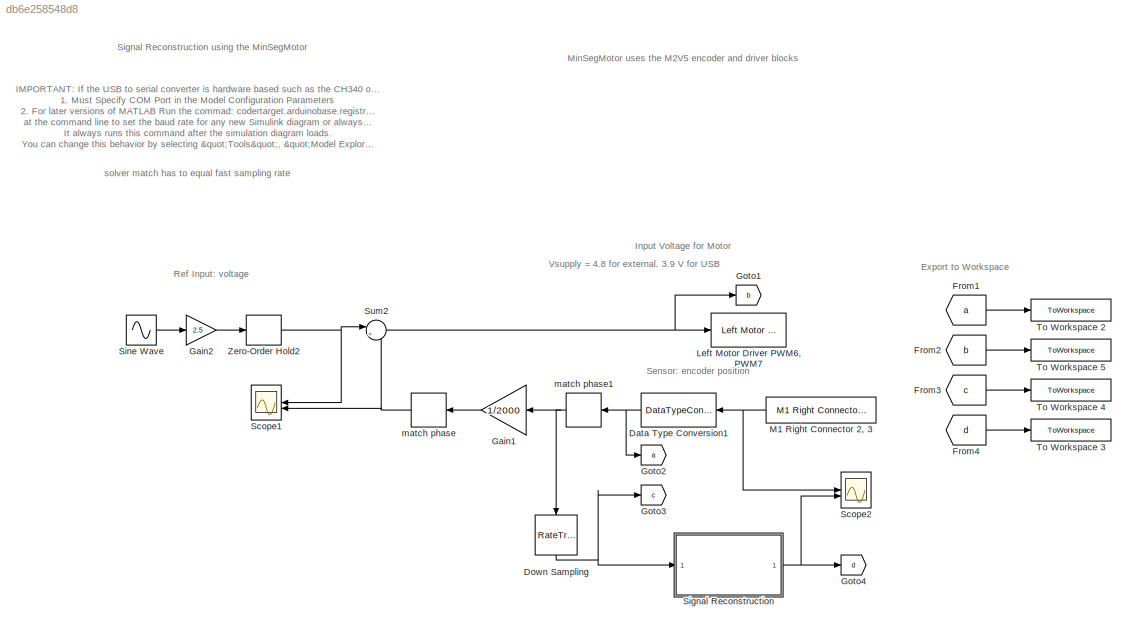
MODEL slx_db6e258548d8
KIND model
CONFIG AbsTol = auto
CONFIG EnableMultiTasking = on
CONFIG FixedStep = auto
CONFIG MaxStep = auto
CONFIG MinStep = auto
CONFIG PostLoadFcn = try, \ncodertarget.arduinobase.registry.setBaudRate(gcs,115200)\ndisp('baud rate set to 115200 for external mode hardware serial')\nbaudrate='set_to_115200'\ncatch\ndisp('baud rate setting not needed in this version')\nend
CONFIG RelTol = 1e-3
CONFIG SampleTimeConstraint = Unconstrained
CONFIG SolverName = ode45
CONFIG StartTime = 0.0
CONFIG StopTime = 10.0
BLOCK [DataTypeConversion] Data Type Conversion1
  NameLocation = top
  OutDataTypeStr = double
  RndMeth = Floor
  SaturateOnIntegerOverflow = off
BLOCK [RateTransition] Down Sampling
  NameLocation = left
  OutPortSampleTime = T_ss
BLOCK [From] From1
  GotoTag = a
BLOCK [From] From2
  GotoTag = b
BLOCK [From] From3
  GotoTag = c
BLOCK [From] From4
  GotoTag = d
BLOCK [Gain] Gain1
  Gain = 1/2000
  NameLocation = top
BLOCK [Gain] Gain2
  Gain = 2.5
BLOCK [Goto] Goto1
  GotoTag = b
BLOCK [Goto] Goto2
  GotoTag = a
BLOCK [Goto] Goto3
  GotoTag = c
BLOCK [Goto] Goto4
  GotoTag = d
BLOCK [Reference] Left Motor Driver PWM6, PWM7  REF=MinSegLibrary_M2V5/Left Motor Driver
PWM6, PWM7
  SourceBlock = MinSegLibrary_M2V5/Left Motor Driver\nPWM6, PWM7
  SourceProductName = M2V5 Library
BLOCK [Reference] M1 Right Connector 2, 3  REF=MinSegLibrary_M2V5/M1 Right Connector 2, 3
  NameLocation = top
  SourceBlock = MinSegLibrary_M2V5/M1 Right Connector 2, 3
  SourceProductName = M2V5 Library
  SourceType = Encoder_arduino
BLOCK [Scope] Scope1
  Floating = off
  NameLocation = top
  NumInputPorts = 2
  ScopeSpecificationString = Simulink.scopes.TimeScopeBlockCfg('CurrentConfiguration', extmgr.ConfigurationSet(extmgr.Configuration('Core','General UI',true),extmgr.Configuration('Core','Source UI',true),extmgr.Configuration('Sources','WiredSimulink',true,'DataLoggingVariableName','ScopeData1'),extmgr.Configuration('Visuals','Time Domain',true,'SerializedDisplays',{struct('MinYLimReal','-5.19991','MaxYLimReal','5.20663','YLab...<+1524ch>
BLOCK [Scope] Scope2
  Floating = off
  NumInputPorts = 2
  ScopeSpecificationString = Simulink.scopes.TimeScopeBlockCfg('CurrentConfiguration', extmgr.ConfigurationSet(extmgr.Configuration('Core','General UI',true),extmgr.Configuration('Core','Source UI',true),extmgr.Configuration('Sources','WiredSimulink',true,'DataLoggingVariableName','ScopeData1'),extmgr.Configuration('Visuals','Time Domain',true,'SerializedDisplays',{struct('MinYLimReal','-918.17826','MaxYLimReal','909.79758','...<+1683ch>
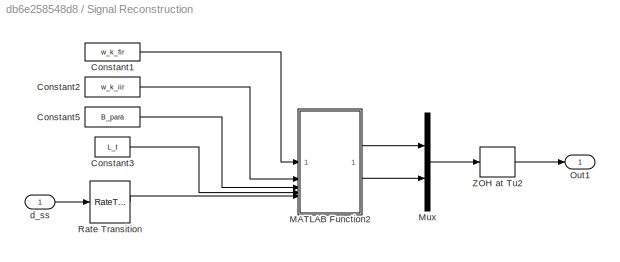
BLOCK [SubSystem] Signal Reconstruction
BLOCK [Constant] Signal Reconstruction/Constant1
  Value = w_k_fir
BLOCK [Constant] Signal Reconstruction/Constant2
  Value = w_k_iir
BLOCK [Constant] Signal Reconstruction/Constant3
  Value = L_t
BLOCK [Constant] Signal Reconstruction/Constant5
  Value = B_para
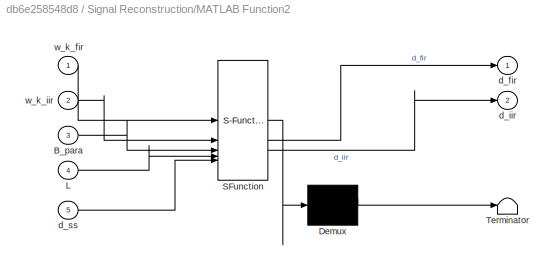
BLOCK [SubSystem] Signal Reconstruction/MATLAB Function2
  ErrorFcn = Stateflow.Translate.translate
  PermitHierarchicalResolution = ExplicitOnly
  SFBlockType = MATLAB Function
  SystemSampleTime = T_fs
  TreatAsAtomicUnit = on
BLOCK [Demux] Signal Reconstruction/MATLAB Function2/ Demux 
  Outputs = 1
BLOCK [S-Function] Signal Reconstruction/MATLAB Function2/ SFunction 
  EnableBusSupport = on
  FunctionName = sf_sfun
  PortCounts = [5 3]
  SFcnIsStateOwnerBlock = off
  SFunctionDeploymentMode = off
  Tag = Stateflow S-Function 1
BLOCK [Terminator] Signal Reconstruction/MATLAB Function2/ Terminator 
BLOCK [Inport] Signal Reconstruction/MATLAB Function2/B_para
  Port = 3
BLOCK [Inport] Signal Reconstruction/MATLAB Function2/L
  Port = 4
BLOCK [Outport] Signal Reconstruction/MATLAB Function2/d_fir
BLOCK [Outport] Signal Reconstruction/MATLAB Function2/d_iir
  Port = 2
BLOCK [Inport] Signal Reconstruction/MATLAB Function2/d_ss
  Port = 5
BLOCK [Inport] Signal Reconstruction/MATLAB Function2/w_k_fir
BLOCK [Inport] Signal Reconstruction/MATLAB Function2/w_k_iir
  Port = 2
BLOCK [Mux] Signal Reconstruction/Mux
  DisplayOption = bar
  Inputs = 2
BLOCK [Outport] Signal Reconstruction/Out1
BLOCK [RateTransition] Signal Reconstruction/Rate Transition
  OutPortSampleTime = T_fs
BLOCK [ZeroOrderHold] Signal Reconstruction/ZOH at Tu2
  SampleTime = T_fs
BLOCK [Inport] Signal Reconstruction/d_ss
BLOCK [Sin] Sine Wave
  Frequency = f_in*2*pi
  SampleTime = 0
BLOCK [Sum] Sum2
  Inputs = |+-
BLOCK [ToWorkspace] To Workspace 2
  MaxDataPoints = Inf
  SampleTime = -1
  SaveFormat = Structure With Time
  VariableName = out_encoder
BLOCK [ToWorkspace] To Workspace 3
  MaxDataPoints = Inf
  SampleTime = T_fs
  SaveFormat = Structure With Time
  VariableName = out_W
BLOCK [ToWorkspace] To Workspace 4
  MaxDataPoints = Inf
  SampleTime = -1
  SaveFormat = Structure With Time
  VariableName = in_W
BLOCK [ToWorkspace] To Workspace 5
  MaxDataPoints = Inf
  SampleTime = -1
  SaveFormat = Structure With Time
  VariableName = in_voltage
BLOCK [ZeroOrderHold] Zero-Order Hold2
  SampleTime = T_fs
BLOCK [Delay] match phase
  DelayLength = 5
  InputPortMap = u0
  NameLocation = top
BLOCK [Delay] match phase1
  InputPortMap = u0
  NameLocation = top
ANNOTATION (root): solver match has to equal fast sampling rate
ANNOTATION (root): IMPORTANT : If the USB to serial converter is hardware based such as the CH340 or the PL2303 you must: 1. Must Specify COM Port in the Model Configuration Parameters 2. For later versions of MATLAB Run the commad: codertarget.arduinobase.registry.setBaudRate(gcs,115200) at the command line to set the baud rate for any new Simulink diagram or always use this file to start new projects. It always ru...<+147ch>
ANNOTATION (root): Export to Workspace
ANNOTATION (root): Input Voltage for Motor
ANNOTATION (root): MinSegMotor uses the M2V5 encoder and driver blocks
ANNOTATION (root): Ref Input: voltage
ANNOTATION (root): Sensor: encoder position
ANNOTATION (root): Signal Reconstruction using the MinSegMotor
ANNOTATION (root): Vsupply = 4.8 for external. 3.9 V for USB
NET Data Type Conversion1:1 -> Goto2:1, match phase1:1
NET Down Sampling:1 -> Goto3:1, Signal Reconstruction:1
LINE From1:1 -> To Workspace 2:1
LINE From2:1 -> To Workspace 5:1
LINE From3:1 -> To Workspace 4:1
LINE From4:1 -> To Workspace 3:1
LINE Gain1:1 -> match phase:1
LINE Gain2:1 -> Zero-Order Hold2:1
NET M1 Right Connector 2, 3:1 -> Data Type Conversion1:1, Scope2:1
LINE Signal Reconstruction/Constant1:1 -> Signal Reconstruction/MATLAB Function2:1
LINE Signal Reconstruction/Constant2:1 -> Signal Reconstruction/MATLAB Function2:2
LINE Signal Reconstruction/Constant3:1 -> Signal Reconstruction/MATLAB Function2:4
LINE Signal Reconstruction/Constant5:1 -> Signal Reconstruction/MATLAB Function2:3
LINE Signal Reconstruction/MATLAB Function2:1 -> Signal Reconstruction/Mux:1
LINE Signal Reconstruction/MATLAB Function2:2 -> Signal Reconstruction/Mux:2
LINE Signal Reconstruction/Mux:1 -> Signal Reconstruction/ZOH at Tu2:1
LINE Signal Reconstruction/Rate Transition:1 -> Signal Reconstruction/MATLAB Function2:5
LINE Signal Reconstruction/ZOH at Tu2:1 -> Signal Reconstruction/Out1:1
LINE Signal Reconstruction/d_ss:1 -> Signal Reconstruction/Rate Transition:1
NET Signal Reconstruction:1 -> Goto4:1, Scope2:2
LINE Sine Wave:1 -> Gain2:1
NET Sum2:1 -> Goto1:1, Left Motor Driver PWM6, PWM7:1
NET Zero-Order Hold2:1 -> Scope1:1, Sum2:1
NET match phase1:1 -> Down Sampling:1, Gain1:1
NET match phase:1 -> Scope1:2, Sum2:2
note: NET lines group one-source signal fan-out (src -> all destinations, sorted); 1:1 wires keep LINE
CHART Signal Reconstruction/MATLAB Function2 states=1 transitions=1
  STATE_LABEL 'eML_blk_kernel()'
  STATE_LABEL 'SCRIPT:\nfunction [d_fir, d_iir] = fcn(w_k_fir, w_k_iir, B_para, L, d_ss)\n    % Keeps data of variables\n    persistent n_w phi n_fs n_ss d_buff max_buffer_size buffer_indices\n    \n    % Assigning initial values   \n    if isempty(n_w)\n        n_w = size(w_k_iir,1); % n_w = 2m disturbances (index starts at 0,1,...,2m-1)\n        buffer_indices = 2:L:((n_w-1)*L+2);\n        max_buffer_size = (n_w*L+1); ...<+1666ch>'
CHART  states=0 transitions=0
